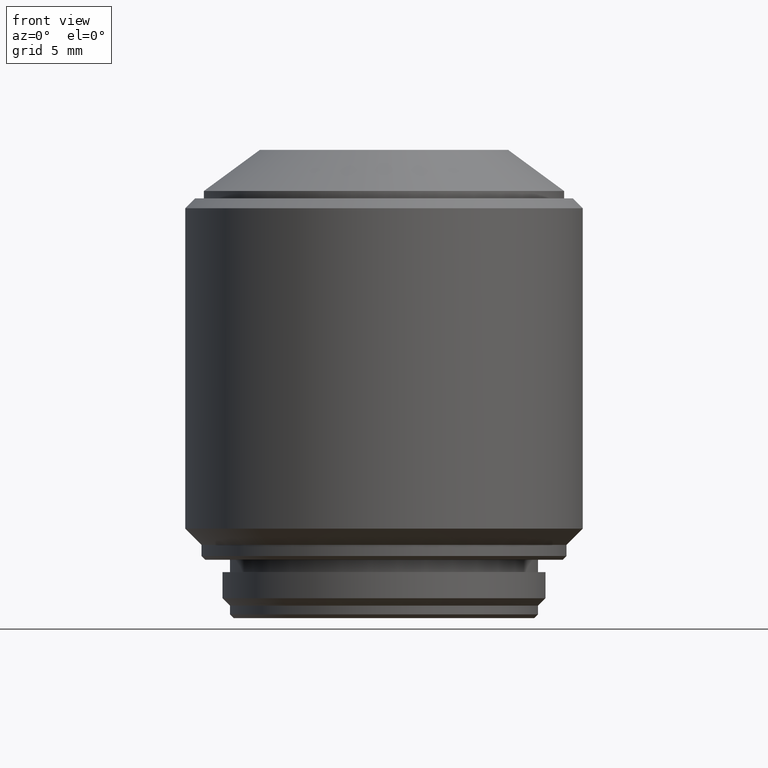
[diagram: clean part render]
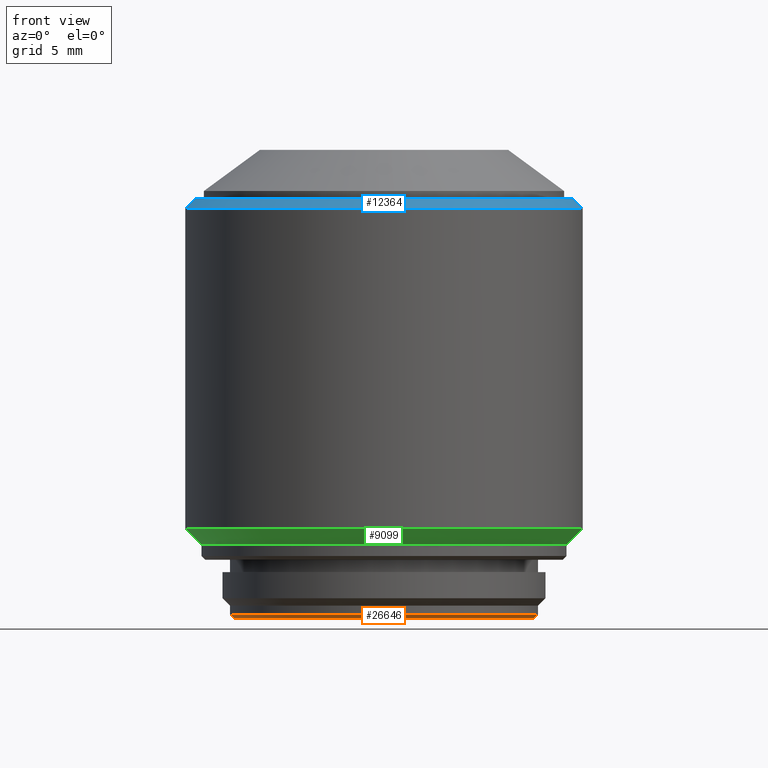
[diagram: same view with three faces highlighted in distinct colors, each labeled with its STEP entity id]
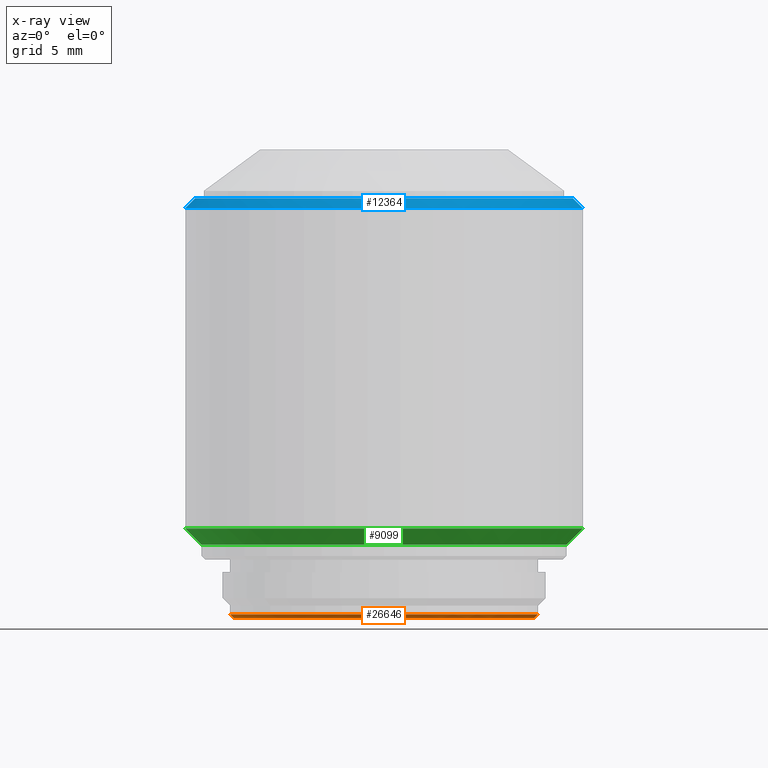
[diagram: x-ray of the same camera — body ghosted, the three highlighted faces saturated]
A machine part, front view with three faces highlighted in distinct colors.
The next image is the same camera in x-ray (body ghosted, the three faces saturated) — at least one of them is partly hidden behind the body in this view.
Their STEP definitions:

[orange] entity #26646 — the highlighted conical surface has half-angle 45 deg.
#338 = DIRECTION ( 'NONE',  ( 0.7071067811865431318, 0.000000000000000000, 0.7071067811865520136 ) ) ;
#1378 = VERTEX_POINT ( 'NONE', #10586 ) ;
#1645 = VECTOR ( 'NONE', #26450, 999.9999999999998863 ) ;
#3700 = CARTESIAN_POINT ( 'NONE',  ( -12.09999999999999964, 1.500192328955507734E-15, 0.000000000000000000 ) ) ;
#4417 = EDGE_CURVE ( 'NONE', #6935, #1378, #12234, .T. ) ;
#5795 = DIRECTION ( 'NONE',  ( 1.000000000000000000, 0.000000000000000000, 0.000000000000000000 ) ) ;
#6075 = EDGE_LOOP ( 'NONE', ( #18231, #17287, #12864, #8599 ) ) ;
#6708 = EDGE_CURVE ( 'NONE', #23071, #1378, #20830, .T. ) ;
#6935 = VERTEX_POINT ( 'NONE', #21779 ) ;
#7955 = LINE ( 'NONE', #20510, #1645 ) ;
#8599 = ORIENTED_EDGE ( 'NONE', *, *, #4417, .F. ) ;
#8682 = EDGE_CURVE ( 'NONE', #23071, #24829, #23515, .T. ) ;
#10586 = CARTESIAN_POINT ( 'NONE',  ( 12.40000000000000213, 0.000000000000000000, 0.3000000000000049849 ) ) ;
#10819 = CARTESIAN_POINT ( 'NONE',  ( 0.000000000000000000, 0.000000000000000000, 0.000000000000000000 ) ) ;
#12234 = CIRCLE ( 'NONE', #22573, 12.40000000000000036 ) ;
#12439 = FACE_OUTER_BOUND ( 'NONE', #6075, .T. ) ;
#12864 = ORIENTED_EDGE ( 'NONE', *, *, #6708, .T. ) ;
#13507 = DIRECTION ( 'NONE',  ( 0.000000000000000000, 0.000000000000000000, 1.000000000000000000 ) ) ;
#14586 = CONICAL_SURFACE ( 'NONE', #18049, 12.09999999999999964, 0.7853981633974419507 ) ;
#14936 = CARTESIAN_POINT ( 'NONE',  ( 0.000000000000000000, 0.000000000000000000, 0.000000000000000000 ) ) ;
#15078 = DIRECTION ( 'NONE',  ( 1.000000000000000000, 0.000000000000000000, 0.000000000000000000 ) ) ;
#15210 = DIRECTION ( 'NONE',  ( 0.000000000000000000, 0.000000000000000000, -1.000000000000000000 ) ) ;
#16890 = DIRECTION ( 'NONE',  ( 1.000000000000000000, 0.000000000000000000, 0.000000000000000000 ) ) ;
#17287 = ORIENTED_EDGE ( 'NONE', *, *, #8682, .F. ) ;
#18049 = AXIS2_PLACEMENT_3D ( 'NONE', #10819, #19056, #16890 ) ;
#18231 = ORIENTED_EDGE ( 'NONE', *, *, #22750, .F. ) ;
#18676 = CARTESIAN_POINT ( 'NONE',  ( 12.09999999999999964, 0.000000000000000000, 0.000000000000000000 ) ) ;
#19056 = DIRECTION ( 'NONE',  ( 0.000000000000000000, 0.000000000000000000, 1.000000000000000000 ) ) ;
#19649 = AXIS2_PLACEMENT_3D ( 'NONE', #14936, #15210, #15078 ) ;
#20510 = CARTESIAN_POINT ( 'NONE',  ( -12.09999999999999964, 1.481822626968297304E-15, 0.000000000000000000 ) ) ;
#20830 = LINE ( 'NONE', #18676, #26067 ) ;
#21779 = CARTESIAN_POINT ( 'NONE',  ( -12.40000000000000213, 1.518562030942718164E-15, 0.3000000000000049849 ) ) ;
#22003 = CARTESIAN_POINT ( 'NONE',  ( 0.000000000000000000, 0.000000000000000000, 0.3000000000000049849 ) ) ;
#22573 = AXIS2_PLACEMENT_3D ( 'NONE', #22003, #13507, #5795 ) ;
#22750 = EDGE_CURVE ( 'NONE', #24829, #6935, #7955, .T. ) ;
#23071 = VERTEX_POINT ( 'NONE', #24262 ) ;
#23515 = CIRCLE ( 'NONE', #19649, 12.09999999999999964 ) ;
#24262 = CARTESIAN_POINT ( 'NONE',  ( 12.09999999999999964, 0.000000000000000000, 0.000000000000000000 ) ) ;
#24829 = VERTEX_POINT ( 'NONE', #3700 ) ;
#26067 = VECTOR ( 'NONE', #338, 999.9999999999998863 ) ;
#26450 = DIRECTION ( 'NONE',  ( -0.7071067811865431318, 8.659560562354878624E-17, 0.7071067811865520136 ) ) ;
#26646 = ADVANCED_FACE ( 'NONE', ( #12439 ), #14586, .T. ) ;

[blue] entity #12364 — the highlighted conical surface has half-angle 45 deg.
#2326 = EDGE_CURVE ( 'NONE', #8635, #9180, #22151, .T. ) ;
#2414 = VERTEX_POINT ( 'NONE', #4055 ) ;
#3220 = CARTESIAN_POINT ( 'NONE',  ( 0.000000000000000000, 0.000000000000000000, 33.00000000000000000 ) ) ;
#3394 = VECTOR ( 'NONE', #12616, 999.9999999999998863 ) ;
#3580 = CARTESIAN_POINT ( 'NONE',  ( 15.19999999999999929, 1.861463134703977092E-15, 33.79999999999999716 ) ) ;
#4055 = CARTESIAN_POINT ( 'NONE',  ( -15.99999999999998579, 0.000000000000000000, 33.00000000000000000 ) ) ;
#4382 = LINE ( 'NONE', #10593, #3394 ) ;
#5509 = CIRCLE ( 'NONE', #22306, 16.00000000000000000 ) ;
#6161 = CARTESIAN_POINT ( 'NONE',  ( 15.19999999999999929, 1.910449006669870126E-15, 33.79999999999999716 ) ) ;
#6169 = ORIENTED_EDGE ( 'NONE', *, *, #13212, .F. ) ;
#6970 = CARTESIAN_POINT ( 'NONE',  ( -15.19999999999999929, 0.000000000000000000, 33.79999999999999716 ) ) ;
#7519 = DIRECTION ( 'NONE',  ( 1.000000000000000000, 0.000000000000000000, 0.000000000000000000 ) ) ;
#8359 = VERTEX_POINT ( 'NONE', #14261 ) ;
#8635 = VERTEX_POINT ( 'NONE', #6970 ) ;
#9031 = DIRECTION ( 'NONE',  ( 0.000000000000000000, 0.000000000000000000, -1.000000000000000000 ) ) ;
#9180 = VERTEX_POINT ( 'NONE', #6161 ) ;
#9347 = AXIS2_PLACEMENT_3D ( 'NONE', #12428, #18639, #10269 ) ;
#10269 = DIRECTION ( 'NONE',  ( -1.000000000000000000, 0.000000000000000000, 0.000000000000000000 ) ) ;
#10583 = ORIENTED_EDGE ( 'NONE', *, *, #21557, .F. ) ;
#10593 = CARTESIAN_POINT ( 'NONE',  ( -15.19999999999999929, 0.000000000000000000, 33.79999999999999716 ) ) ;
#12364 = ADVANCED_FACE ( 'NONE', ( #16351 ), #20118, .T. ) ;
#12428 = CARTESIAN_POINT ( 'NONE',  ( 0.000000000000000000, 0.000000000000000000, 33.79999999999999716 ) ) ;
#12616 = DIRECTION ( 'NONE',  ( -0.7071067811865441310, 0.000000000000000000, -0.7071067811865510144 ) ) ;
#13212 = EDGE_CURVE ( 'NONE', #9180, #8359, #24599, .T. ) ;
#14261 = CARTESIAN_POINT ( 'NONE',  ( 15.99999999999998579, 1.959434878635763554E-15, 33.00000000000000000 ) ) ;
#14817 = ORIENTED_EDGE ( 'NONE', *, *, #24777, .T. ) ;
#16083 = DIRECTION ( 'NONE',  ( 0.000000000000000000, 0.000000000000000000, 1.000000000000000000 ) ) ;
#16351 = FACE_OUTER_BOUND ( 'NONE', #22701, .T. ) ;
#18639 = DIRECTION ( 'NONE',  ( 0.000000000000000000, 0.000000000000000000, -1.000000000000000000 ) ) ;
#20118 = CONICAL_SURFACE ( 'NONE', #9347, 15.19999999999999929, 0.7853981633974433940 ) ;
#20411 = AXIS2_PLACEMENT_3D ( 'NONE', #21901, #16083, #24306 ) ;
#21310 = ORIENTED_EDGE ( 'NONE', *, *, #2326, .F. ) ;
#21557 = EDGE_CURVE ( 'NONE', #8359, #2414, #5509, .T. ) ;
#21901 = CARTESIAN_POINT ( 'NONE',  ( 0.000000000000000000, 0.000000000000000000, 33.79999999999999716 ) ) ;
#22151 = CIRCLE ( 'NONE', #20411, 15.19999999999999929 ) ;
#22306 = AXIS2_PLACEMENT_3D ( 'NONE', #3220, #9031, #7519 ) ;
#22448 = DIRECTION ( 'NONE',  ( 0.7071067811865441310, 8.659560562354890950E-17, -0.7071067811865510144 ) ) ;
#22690 = VECTOR ( 'NONE', #22448, 999.9999999999998863 ) ;
#22701 = EDGE_LOOP ( 'NONE', ( #6169, #21310, #14817, #10583 ) ) ;
#24306 = DIRECTION ( 'NONE',  ( 1.000000000000000000, 0.000000000000000000, 0.000000000000000000 ) ) ;
#24599 = LINE ( 'NONE', #3580, #22690 ) ;
#24777 = EDGE_CURVE ( 'NONE', #8635, #2414, #4382, .T. ) ;

[green] entity #9099 — the highlighted conical surface has half-angle 45 deg.
#632 = EDGE_CURVE ( 'NONE', #23613, #18086, #19986, .T. ) ;
#635 = LINE ( 'NONE', #2237, #23568 ) ;
#952 = FACE_OUTER_BOUND ( 'NONE', #23656, .T. ) ;
#1650 = CARTESIAN_POINT ( 'NONE',  ( -15.99999999999998579, 1.959434878635763159E-15, 7.200000000000000178 ) ) ;
#2203 = DIRECTION ( 'NONE',  ( -1.000000000000000000, 0.000000000000000000, 0.000000000000000000 ) ) ;
#2237 = CARTESIAN_POINT ( 'NONE',  ( -14.69999999999999929, 1.800230794746609123E-15, 5.899999999999999467 ) ) ;
#4000 = DIRECTION ( 'NONE',  ( 0.000000000000000000, 0.000000000000000000, 1.000000000000000000 ) ) ;
#4462 = AXIS2_PLACEMENT_3D ( 'NONE', #26672, #4000, #16685 ) ;
#4996 = DIRECTION ( 'NONE',  ( 1.000000000000000000, 0.000000000000000000, 0.000000000000000000 ) ) ;
#5083 = VECTOR ( 'NONE', #14554, 1000.000000000000000 ) ;
#6033 = CARTESIAN_POINT ( 'NONE',  ( 14.69999999999999929, 0.000000000000000000, 5.899999999999999467 ) ) ;
#6199 = ORIENTED_EDGE ( 'NONE', *, *, #21453, .T. ) ;
#6723 = AXIS2_PLACEMENT_3D ( 'NONE', #20682, #14338, #2203 ) ;
#8746 = CARTESIAN_POINT ( 'NONE',  ( 14.69999999999999929, 0.000000000000000000, 5.899999999999999467 ) ) ;
#8826 = ORIENTED_EDGE ( 'NONE', *, *, #13154, .F. ) ;
#9026 = VERTEX_POINT ( 'NONE', #14068 ) ;
#9099 = ADVANCED_FACE ( 'NONE', ( #952 ), #21806, .T. ) ;
#9148 = VERTEX_POINT ( 'NONE', #6033 ) ;
#9902 = EDGE_CURVE ( 'NONE', #9148, #9026, #19232, .T. ) ;
#12966 = ORIENTED_EDGE ( 'NONE', *, *, #9902, .F. ) ;
#13154 = EDGE_CURVE ( 'NONE', #9026, #23613, #635, .T. ) ;
#14068 = CARTESIAN_POINT ( 'NONE',  ( -14.69999999999999929, 1.879832836691186339E-15, 5.899999999999999467 ) ) ;
#14338 = DIRECTION ( 'NONE',  ( 0.000000000000000000, 0.000000000000000000, -1.000000000000000000 ) ) ;
#14554 = DIRECTION ( 'NONE',  ( 0.7071067811865435759, 0.000000000000000000, 0.7071067811865515695 ) ) ;
#15387 = DIRECTION ( 'NONE',  ( 0.000000000000000000, 0.000000000000000000, 1.000000000000000000 ) ) ;
#16685 = DIRECTION ( 'NONE',  ( -1.000000000000000000, 0.000000000000000000, 0.000000000000000000 ) ) ;
#18086 = VERTEX_POINT ( 'NONE', #25764 ) ;
#19232 = CIRCLE ( 'NONE', #6723, 14.69999999999999929 ) ;
#19986 = CIRCLE ( 'NONE', #4462, 16.00000000000000000 ) ;
#20465 = ORIENTED_EDGE ( 'NONE', *, *, #632, .F. ) ;
#20682 = CARTESIAN_POINT ( 'NONE',  ( 0.000000000000000000, 0.000000000000000000, 5.899999999999999467 ) ) ;
#21308 = LINE ( 'NONE', #8746, #5083 ) ;
#21453 = EDGE_CURVE ( 'NONE', #9148, #18086, #21308, .T. ) ;
#21806 = CONICAL_SURFACE ( 'NONE', #24789, 14.69999999999999929, 0.7853981633974426169 ) ;
#23468 = CARTESIAN_POINT ( 'NONE',  ( 0.000000000000000000, 0.000000000000000000, 5.899999999999999467 ) ) ;
#23568 = VECTOR ( 'NONE', #25311, 1000.000000000000000 ) ;
#23613 = VERTEX_POINT ( 'NONE', #1650 ) ;
#23656 = EDGE_LOOP ( 'NONE', ( #8826, #12966, #6199, #20465 ) ) ;
#24789 = AXIS2_PLACEMENT_3D ( 'NONE', #23468, #15387, #4996 ) ;
#25311 = DIRECTION ( 'NONE',  ( -0.7071067811865435759, 8.659560562354883554E-17, 0.7071067811865515695 ) ) ;
#25764 = CARTESIAN_POINT ( 'NONE',  ( 15.99999999999998579, 0.000000000000000000, 7.200000000000000178 ) ) ;
#26672 = CARTESIAN_POINT ( 'NONE',  ( 0.000000000000000000, 0.000000000000000000, 7.200000000000000178 ) ) ;